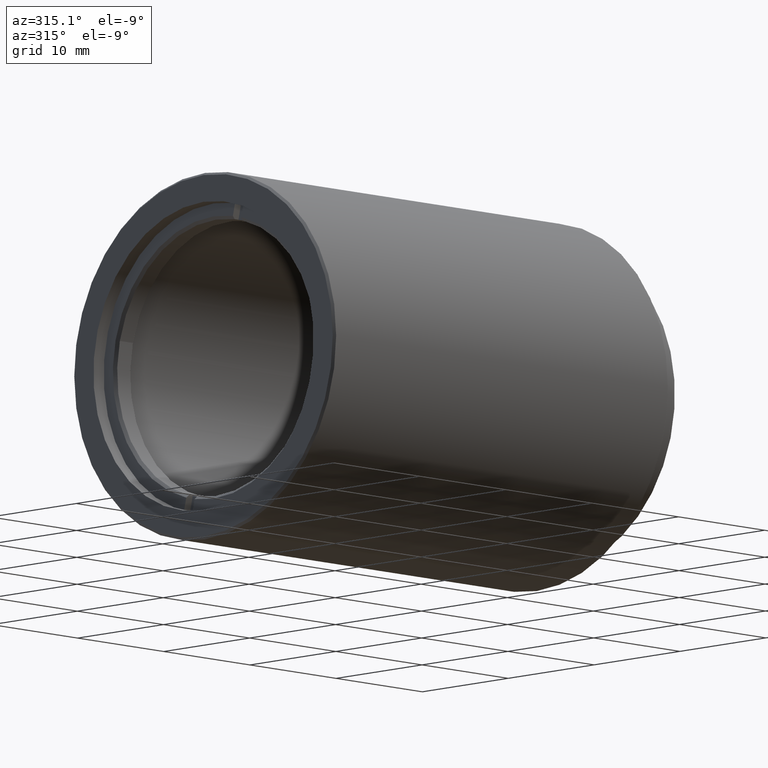
[diagram: clean part render]
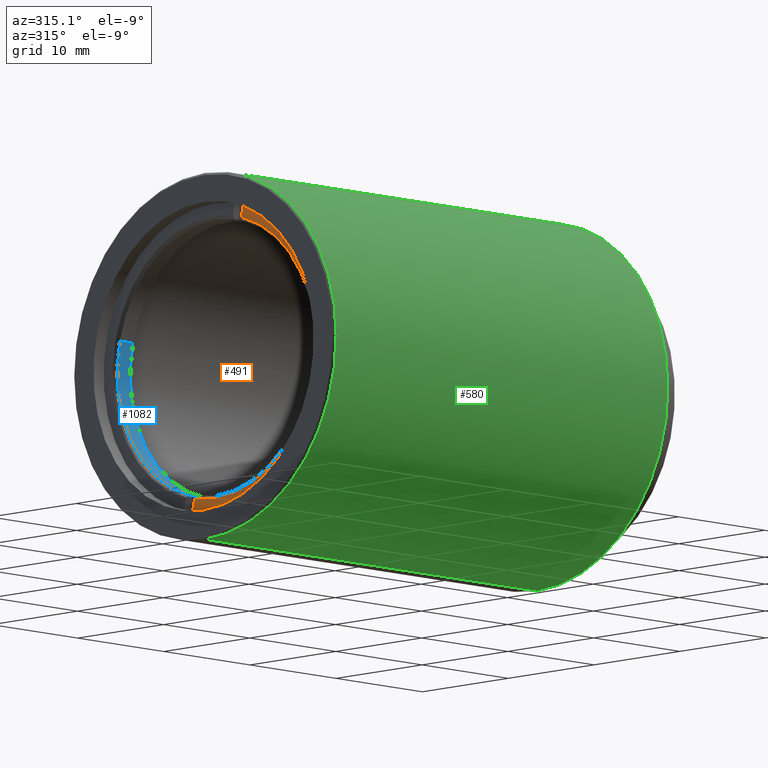
[diagram: same view with three faces highlighted in distinct colors, each labeled with its STEP entity id]
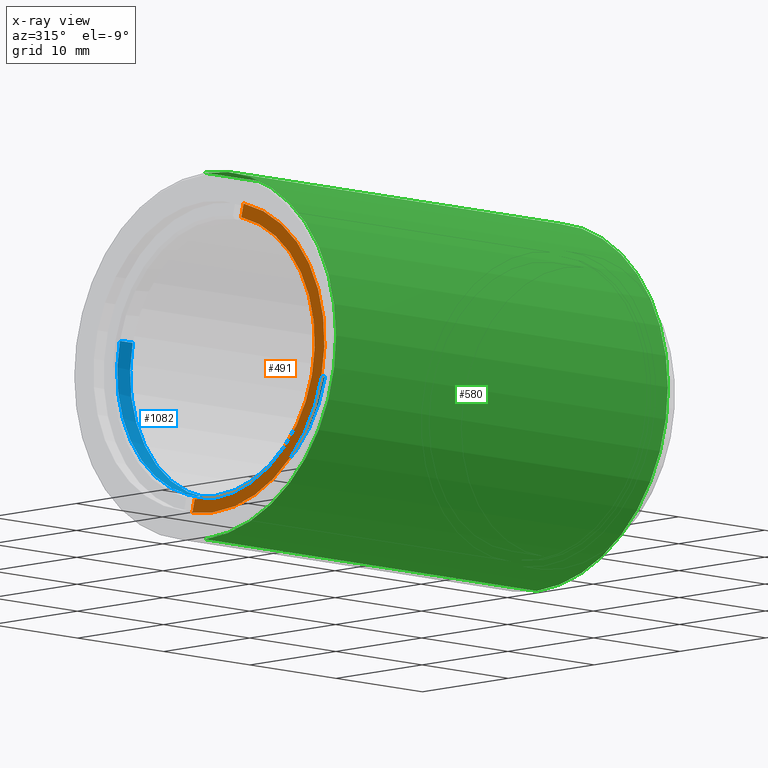
[diagram: x-ray of the same camera — body ghosted, the three highlighted faces saturated]
A machine part, auxiliary view with three faces highlighted in distinct colors.
The next image is the same camera in x-ray (body ghosted, the three faces saturated) — at least one of them is partly hidden behind the body in this view.
Their STEP definitions:

[orange] entity #491 — the highlighted planar face has unit normal (-1, 0, 0).
#26 = VERTEX_POINT ( 'NONE', #654 ) ;
#45 = EDGE_CURVE ( 'NONE', #644, #995, #441, .T. ) ;
#167 = PLANE ( 'NONE',  #369 ) ;
#176 = EDGE_CURVE ( 'NONE', #26, #1391, #270, .T. ) ;
#215 = CARTESIAN_POINT ( 'NONE',  ( -34.18143387617175222, -20.10857142857142676, -9.486769009248165770E-16 ) ) ;
#255 = ORIENTED_EDGE ( 'NONE', *, *, #45, .F. ) ;
#270 = CIRCLE ( 'NONE', #343, 11.75449999999999307 ) ;
#291 = ORIENTED_EDGE ( 'NONE', *, *, #1170, .F. ) ;
#330 = CARTESIAN_POINT ( 'NONE',  ( -34.18143387617175222, -23.31145544035828721, 11.30972167018445340 ) ) ;
#343 = AXIS2_PLACEMENT_3D ( 'NONE', #215, #727, #1464 ) ;
#369 = AXIS2_PLACEMENT_3D ( 'NONE', #544, #1287, #793 ) ;
#376 = EDGE_LOOP ( 'NONE', ( #291, #676, #255, #1294, #1370 ) ) ;
#418 = CARTESIAN_POINT ( 'NONE',  ( -34.18143387617175222, -17.87856809738273967, -11.54102921722699548 ) ) ;
#441 = LINE ( 'NONE', #1163, #548 ) ;
#461 = CARTESIAN_POINT ( 'NONE',  ( -34.18143387617175222, -23.57536378247224107, 12.41972145520721504 ) ) ;
#465 = DIRECTION ( 'NONE',  ( 1.000000000000000000, 2.105809034732735045E-31, 4.356099237842255014E-33 ) ) ;
#484 = CARTESIAN_POINT ( 'NONE',  ( -34.18143387617175222, -20.10857142857142676, -9.486769009248165770E-16 ) ) ;
#491 = ADVANCED_FACE ( 'NONE', ( #1442 ), #167, .T. ) ;
#544 = CARTESIAN_POINT ( 'NONE',  ( -34.18143387617175222, -20.10857142857142676, -9.486769009248165770E-16 ) ) ;
#548 = VECTOR ( 'NONE', #1282, 1000.000000000000000 ) ;
#644 = VERTEX_POINT ( 'NONE', #330 ) ;
#654 = CARTESIAN_POINT ( 'NONE',  ( -34.18143387617175222, -31.54429738866262767, -2.718904561711515289 ) ) ;
#676 = ORIENTED_EDGE ( 'NONE', *, *, #1402, .T. ) ;
#701 = EDGE_CURVE ( 'NONE', #644, #26, #729, .T. ) ;
#727 = DIRECTION ( 'NONE',  ( 1.000000000000000000, 2.105809034732735045E-31, 4.356099237842255014E-33 ) ) ;
#729 = CIRCLE ( 'NONE', #1329, 11.75449999999999129 ) ;
#793 = DIRECTION ( 'NONE',  ( -1.885527612890710468E-31, -0.9728806805981727868, -0.2313075470425384472 ) ) ;
#902 = CARTESIAN_POINT ( 'NONE',  ( -34.18143387617175222, -20.10857142857142676, -9.486769009248165770E-16 ) ) ;
#918 = VERTEX_POINT ( 'NONE', #1501 ) ;
#995 = VERTEX_POINT ( 'NONE', #461 ) ;
#1150 = DIRECTION ( 'NONE',  ( -1.000000000000000000, -2.105809034732735045E-31, -4.356099237842255014E-33 ) ) ;
#1163 = CARTESIAN_POINT ( 'NONE',  ( -34.18143387617175222, -44.88230420833699696, 102.0368176892867211 ) ) ;
#1170 = EDGE_CURVE ( 'NONE', #918, #1391, #1377, .T. ) ;
#1208 = DIRECTION ( 'NONE',  ( 0.000000000000000000, -0.9728806805981728978, -0.2313075470425375313 ) ) ;
#1224 = CIRCLE ( 'NONE', #1403, 12.89449999999999008 ) ;
#1266 = DIRECTION ( 'NONE',  ( 0.000000000000000000, -0.9728806805981727868, -0.2313075470425383917 ) ) ;
#1282 = DIRECTION ( 'NONE',  ( -1.280923355719573131E-31, -0.2313075470425383084, 0.9728806805981727868 ) ) ;
#1287 = DIRECTION ( 'NONE',  ( -1.000000000000000000, 1.731528637110815608E-31, 8.687864123437223635E-32 ) ) ;
#1294 = ORIENTED_EDGE ( 'NONE', *, *, #701, .T. ) ;
#1329 = AXIS2_PLACEMENT_3D ( 'NONE', #484, #465, #1208 ) ;
#1332 = CARTESIAN_POINT ( 'NONE',  ( -34.18143387617175222, -44.88230420833699696, 102.0368176892867211 ) ) ;
#1343 = VECTOR ( 'NONE', #1463, 1000.000000000000000 ) ;
#1370 = ORIENTED_EDGE ( 'NONE', *, *, #176, .T. ) ;
#1377 = LINE ( 'NONE', #1332, #1343 ) ;
#1391 = VERTEX_POINT ( 'NONE', #418 ) ;
#1402 = EDGE_CURVE ( 'NONE', #918, #995, #1224, .T. ) ;
#1403 = AXIS2_PLACEMENT_3D ( 'NONE', #902, #1150, #1266 ) ;
#1442 = FACE_OUTER_BOUND ( 'NONE', #376, .T. ) ;
#1463 = DIRECTION ( 'NONE',  ( -1.280923355719573131E-31, -0.2313075470425383084, 0.9728806805981727868 ) ) ;
#1464 = DIRECTION ( 'NONE',  ( 0.000000000000000000, -0.9728806805981727868, -0.2313075470425383640 ) ) ;
#1501 = CARTESIAN_POINT ( 'NONE',  ( -34.18143387617175222, -17.61465975526878580, -12.65102900224975713 ) ) ;

[blue] entity #1082 — the highlighted cylindrical surface (partial cylindrical patch) has radius 11.5045 mm, axis along (1, 0, 0).
#17 = EDGE_CURVE ( 'NONE', #812, #976, #194, .T. ) ;
#51 = ORIENTED_EDGE ( 'NONE', *, *, #279, .F. ) ;
#53 = CARTESIAN_POINT ( 'NONE',  ( -34.18143387617175222, -31.30107721851309321, -2.661077674950880212 ) ) ;
#66 = DIRECTION ( 'NONE',  ( 0.000000000000000000, -0.9728806805981727868, -0.2313075470425384472 ) ) ;
#88 = EDGE_CURVE ( 'NONE', #569, #976, #1425, .T. ) ;
#95 = CARTESIAN_POINT ( 'NONE',  ( -33.48143387617175648, -16.96356783027145809, -11.06627636636099865 ) ) ;
#156 = VECTOR ( 'NONE', #1407, 1000.000000000000000 ) ;
#178 = VERTEX_POINT ( 'NONE', #1441 ) ;
#194 = LINE ( 'NONE', #661, #156 ) ;
#233 = EDGE_CURVE ( 'NONE', #178, #893, #1422, .T. ) ;
#265 = LINE ( 'NONE', #745, #1363 ) ;
#269 = AXIS2_PLACEMENT_3D ( 'NONE', #579, #1413, #437 ) ;
#279 = EDGE_CURVE ( 'NONE', #178, #293, #1577, .T. ) ;
#293 = VERTEX_POINT ( 'NONE', #1124 ) ;
#384 = CARTESIAN_POINT ( 'NONE',  ( -33.93143387617175222, -17.93644851086963143, -11.29758391340353718 ) ) ;
#394 = CARTESIAN_POINT ( 'NONE',  ( -32.43143387617175222, -20.10857142857142676, -9.486769009248163798E-16 ) ) ;
#403 = CYLINDRICAL_SURFACE ( 'NONE', #1021, 11.50449999999998951 ) ;
#428 = DIRECTION ( 'NONE',  ( -1.000000000000000000, -2.105809034732735045E-31, -4.356099237842255014E-33 ) ) ;
#433 = AXIS2_PLACEMENT_3D ( 'NONE', #394, #874, #747 ) ;
#437 = DIRECTION ( 'NONE',  ( 0.000000000000000000, -0.9728806805981727868, -0.2313075470425384472 ) ) ;
#476 = CIRCLE ( 'NONE', #433, 11.50449999999998774 ) ;
#510 = CARTESIAN_POINT ( 'NONE',  ( -33.93143387617175932, -31.30107721851309321, -2.661077674950881544 ) ) ;
#531 = VERTEX_POINT ( 'NONE', #782 ) ;
#554 = EDGE_CURVE ( 'NONE', #812, #809, #1553, .T. ) ;
#569 = VERTEX_POINT ( 'NONE', #95 ) ;
#579 = CARTESIAN_POINT ( 'NONE',  ( -33.48143387617175648, -20.10857142857142676, -9.486769009248157881E-16 ) ) ;
#595 = AXIS2_PLACEMENT_3D ( 'NONE', #875, #999, #1130 ) ;
#661 = CARTESIAN_POINT ( 'NONE',  ( -34.18143387617175222, -17.93644851086963143, -11.29758391340353718 ) ) ;
#683 = VECTOR ( 'NONE', #1017, 1000.000000000000000 ) ;
#745 = CARTESIAN_POINT ( 'NONE',  ( -34.18143387617175222, -16.96356783027145809, -11.06627636636099865 ) ) ;
#747 = DIRECTION ( 'NONE',  ( 0.000000000000000000, -0.9728806805981727868, -0.2313075470425384472 ) ) ;
#755 = ORIENTED_EDGE ( 'NONE', *, *, #1325, .T. ) ;
#773 = ORIENTED_EDGE ( 'NONE', *, *, #233, .T. ) ;
#782 = CARTESIAN_POINT ( 'NONE',  ( -32.43143387617175222, -31.30107721851309321, -2.661077674950880212 ) ) ;
#809 = VERTEX_POINT ( 'NONE', #510 ) ;
#810 = DIRECTION ( 'NONE',  ( 1.000000000000000000, 2.105809034732735045E-31, 4.356099237842255014E-33 ) ) ;
#812 = VERTEX_POINT ( 'NONE', #384 ) ;
#826 = EDGE_CURVE ( 'NONE', #569, #893, #265, .T. ) ;
#874 = DIRECTION ( 'NONE',  ( 1.000000000000000000, 2.105809034732735045E-31, 4.356099237842255014E-33 ) ) ;
#875 = CARTESIAN_POINT ( 'NONE',  ( -33.93143387617175932, -20.10857142857142676, -9.486769009248159853E-16 ) ) ;
#893 = VERTEX_POINT ( 'NONE', #911 ) ;
#911 = CARTESIAN_POINT ( 'NONE',  ( -33.93143387617175932, -16.96356783027145809, -11.06627636636099865 ) ) ;
#933 = ORIENTED_EDGE ( 'NONE', *, *, #826, .F. ) ;
#976 = VERTEX_POINT ( 'NONE', #1037 ) ;
#998 = ORIENTED_EDGE ( 'NONE', *, *, #554, .T. ) ;
#999 = DIRECTION ( 'NONE',  ( -1.000000000000000000, -2.105809034732735045E-31, -4.356099237842255014E-33 ) ) ;
#1017 = DIRECTION ( 'NONE',  ( 1.000000000000000000, 2.105809034732735045E-31, 4.356099237842255014E-33 ) ) ;
#1021 = AXIS2_PLACEMENT_3D ( 'NONE', #1076, #810, #1187 ) ;
#1035 = CARTESIAN_POINT ( 'NONE',  ( -33.93143387617175932, -20.10857142857142676, -9.486769009248159853E-16 ) ) ;
#1037 = CARTESIAN_POINT ( 'NONE',  ( -33.48143387617174938, -17.93644851086963143, -11.29758391340353718 ) ) ;
#1076 = CARTESIAN_POINT ( 'NONE',  ( -34.18143387617175222, -20.10857142857142676, -9.486769009248165770E-16 ) ) ;
#1082 = ADVANCED_FACE ( 'NONE', ( #1398 ), #403, .F. ) ;
#1110 = DIRECTION ( 'NONE',  ( 1.000000000000000000, 2.105809034732735045E-31, 4.356099237842255014E-33 ) ) ;
#1124 = CARTESIAN_POINT ( 'NONE',  ( -32.43143387617175222, -8.916065638629758539, 2.661077674950879768 ) ) ;
#1130 = DIRECTION ( 'NONE',  ( 0.000000000000000000, -0.9728806805981727868, -0.2313075470425384472 ) ) ;
#1185 = EDGE_LOOP ( 'NONE', ( #998, #755, #1586, #51, #773, #933, #1198, #1541 ) ) ;
#1187 = DIRECTION ( 'NONE',  ( 0.000000000000000000, 0.9728806805981727868, 0.2313075470425383917 ) ) ;
#1198 = ORIENTED_EDGE ( 'NONE', *, *, #88, .T. ) ;
#1242 = EDGE_CURVE ( 'NONE', #531, #293, #476, .T. ) ;
#1243 = DIRECTION ( 'NONE',  ( -1.000000000000000000, -2.105809034732735045E-31, -4.356099237842255014E-33 ) ) ;
#1261 = LINE ( 'NONE', #53, #683 ) ;
#1325 = EDGE_CURVE ( 'NONE', #809, #531, #1261, .T. ) ;
#1363 = VECTOR ( 'NONE', #1243, 1000.000000000000000 ) ;
#1398 = FACE_OUTER_BOUND ( 'NONE', #1185, .T. ) ;
#1407 = DIRECTION ( 'NONE',  ( 1.000000000000000000, 2.105809034732735045E-31, 4.356099237842255014E-33 ) ) ;
#1413 = DIRECTION ( 'NONE',  ( -1.000000000000000000, -2.105809034732735045E-31, -4.356099237842255014E-33 ) ) ;
#1422 = CIRCLE ( 'NONE', #595, 11.50449999999998774 ) ;
#1425 = CIRCLE ( 'NONE', #269, 11.50449999999998774 ) ;
#1441 = CARTESIAN_POINT ( 'NONE',  ( -33.93143387617175932, -8.916065638629749657, 2.661077674950881988 ) ) ;
#1444 = VECTOR ( 'NONE', #1110, 1000.000000000000000 ) ;
#1478 = CARTESIAN_POINT ( 'NONE',  ( -34.18143387617175222, -8.916065638629758539, 2.661077674950879768 ) ) ;
#1541 = ORIENTED_EDGE ( 'NONE', *, *, #17, .F. ) ;
#1546 = AXIS2_PLACEMENT_3D ( 'NONE', #1035, #428, #66 ) ;
#1553 = CIRCLE ( 'NONE', #1546, 11.50449999999998774 ) ;
#1577 = LINE ( 'NONE', #1478, #1444 ) ;
#1586 = ORIENTED_EDGE ( 'NONE', *, *, #1242, .T. ) ;

[green] entity #580 — the highlighted cylindrical surface (partial cylindrical patch) has radius 15.25 mm, axis along (-1, -0, -0).
#77 = CARTESIAN_POINT ( 'NONE',  ( 3.525999999999982926, -20.10857142857141966, 0.000000000000000000 ) ) ;
#97 = CIRCLE ( 'NONE', #852, 15.25000000000000000 ) ;
#153 = FACE_OUTER_BOUND ( 'NONE', #240, .T. ) ;
#190 = DIRECTION ( 'NONE',  ( 0.000000000000000000, 0.000000000000000000, 1.000000000000000000 ) ) ;
#205 = DIRECTION ( 'NONE',  ( 1.000000000000000000, 0.000000000000000000, 0.000000000000000000 ) ) ;
#240 = EDGE_LOOP ( 'NONE', ( #467, #532, #1179, #243 ) ) ;
#243 = ORIENTED_EDGE ( 'NONE', *, *, #1041, .T. ) ;
#374 = CARTESIAN_POINT ( 'NONE',  ( 3.525999999999982926, -20.10857142857141611, -15.25000000000000000 ) ) ;
#439 = DIRECTION ( 'NONE',  ( -1.000000000000000000, -0.000000000000000000, -0.000000000000000000 ) ) ;
#467 = ORIENTED_EDGE ( 'NONE', *, *, #1312, .F. ) ;
#489 = CARTESIAN_POINT ( 'NONE',  ( 3.325999999999964984, -20.10857142857141966, 15.25000000000000000 ) ) ;
#505 = CYLINDRICAL_SURFACE ( 'NONE', #1088, 15.25000000000000000 ) ;
#532 = ORIENTED_EDGE ( 'NONE', *, *, #754, .T. ) ;
#540 = CARTESIAN_POINT ( 'NONE',  ( 3.325999999999964984, -20.10857142857141611, -15.25000000000000000 ) ) ;
#580 = ADVANCED_FACE ( 'NONE', ( #153 ), #505, .T. ) ;
#638 = DIRECTION ( 'NONE',  ( -1.000000000000000000, 0.000000000000000000, 0.000000000000000000 ) ) ;
#754 = EDGE_CURVE ( 'NONE', #1404, #775, #1173, .T. ) ;
#771 = CARTESIAN_POINT ( 'NONE',  ( -35.17399999999999949, -20.10857142857141966, -15.25000000000000000 ) ) ;
#775 = VERTEX_POINT ( 'NONE', #489 ) ;
#824 = DIRECTION ( 'NONE',  ( -1.000000000000000000, -0.000000000000000000, -0.000000000000000000 ) ) ;
#844 = CARTESIAN_POINT ( 'NONE',  ( 3.325999999999964984, -20.10857142857141966, 0.000000000000000000 ) ) ;
#852 = AXIS2_PLACEMENT_3D ( 'NONE', #1064, #205, #1181 ) ;
#887 = DIRECTION ( 'NONE',  ( -1.000000000000000000, -0.000000000000000000, -0.000000000000000000 ) ) ;
#977 = VERTEX_POINT ( 'NONE', #771 ) ;
#1019 = VECTOR ( 'NONE', #824, 1000.000000000000000 ) ;
#1038 = LINE ( 'NONE', #1314, #1019 ) ;
#1041 = EDGE_CURVE ( 'NONE', #1582, #977, #97, .T. ) ;
#1060 = LINE ( 'NONE', #374, #1342 ) ;
#1064 = CARTESIAN_POINT ( 'NONE',  ( -35.17399999999999949, -20.10857142857141966, 0.000000000000000000 ) ) ;
#1065 = AXIS2_PLACEMENT_3D ( 'NONE', #844, #638, #1127 ) ;
#1088 = AXIS2_PLACEMENT_3D ( 'NONE', #77, #439, #190 ) ;
#1127 = DIRECTION ( 'NONE',  ( 0.000000000000000000, 0.000000000000000000, -1.000000000000000000 ) ) ;
#1173 = CIRCLE ( 'NONE', #1065, 15.25000000000000000 ) ;
#1179 = ORIENTED_EDGE ( 'NONE', *, *, #1570, .T. ) ;
#1181 = DIRECTION ( 'NONE',  ( 0.000000000000000000, 0.000000000000000000, 1.000000000000000000 ) ) ;
#1277 = CARTESIAN_POINT ( 'NONE',  ( -35.17399999999999949, -20.10857142857141611, 15.25000000000000000 ) ) ;
#1312 = EDGE_CURVE ( 'NONE', #1404, #977, #1060, .T. ) ;
#1314 = CARTESIAN_POINT ( 'NONE',  ( 3.525999999999982926, -20.10857142857141966, 15.25000000000000000 ) ) ;
#1342 = VECTOR ( 'NONE', #887, 1000.000000000000000 ) ;
#1404 = VERTEX_POINT ( 'NONE', #540 ) ;
#1570 = EDGE_CURVE ( 'NONE', #775, #1582, #1038, .T. ) ;
#1582 = VERTEX_POINT ( 'NONE', #1277 ) ;